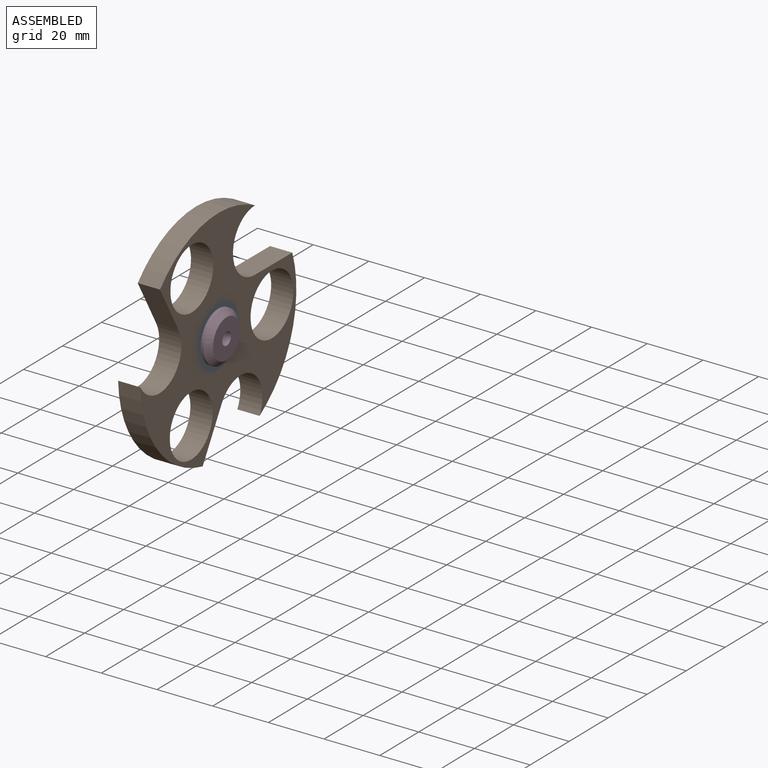
[diagram: assembled view]
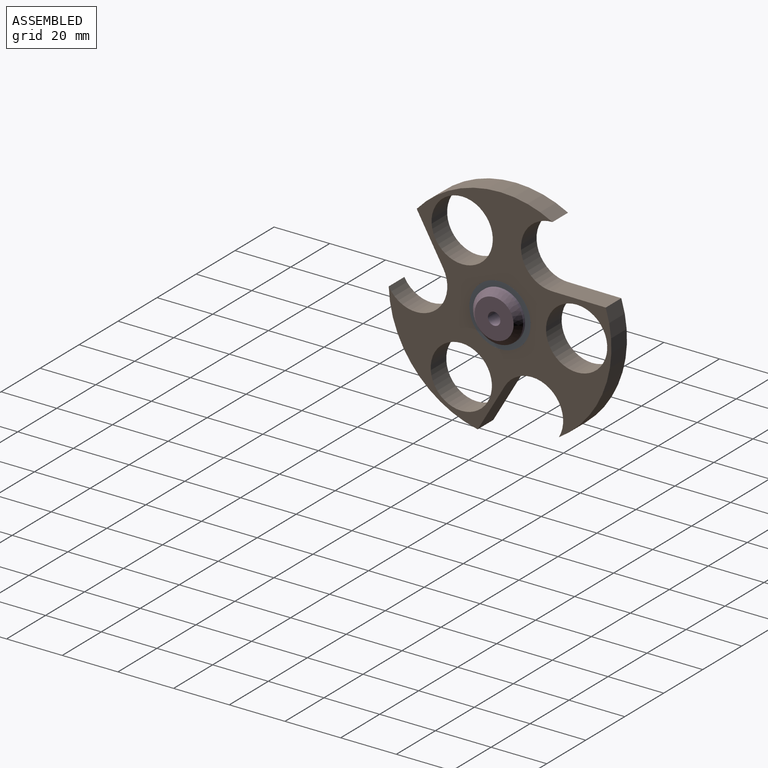
[diagram: assembled view, second angle]
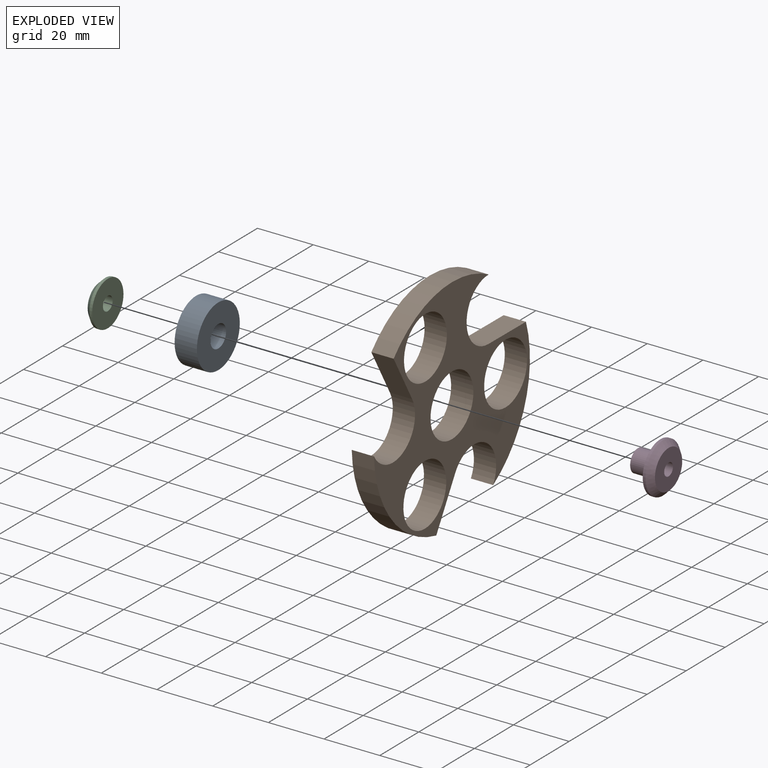
[diagram: exploded view]
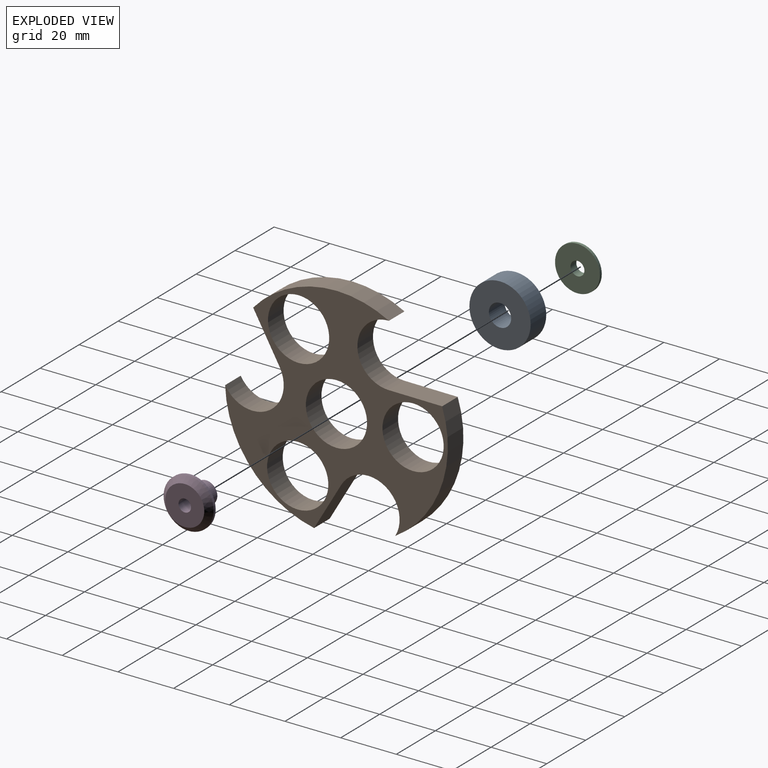
[diagram: exploded view, second angle]
ASSEMBLY  parts=4 mates=3
PART A: 4 faces, bbox 22x22x8 mm
  f0: cylinder r=4mm len=8mm, axis (0,0,-1), area 201.1mm2, adj f2,f3
  f1: cylinder r=11mm len=22mm, axis (0,0,-1), area 552.9mm2, adj f2,f3
  f2: plane 22x22mm, normal (0,0,1), area 329.9mm2, adj f0,f1
  f3: plane 22x22mm, normal (0,0,-1), area 329.9mm2, adj f0,f1
PART B: 15 faces, bbox 79.2x80x8 mm
  f0: plane 16.68x9.63mm, normal (-0.5,0.87,0), area 154.1mm2, adj f1,f12,f13,f14
  f1: cylinder r=40mm len=37.65mm, axis (0,0,-1), area 427.4mm2, adj f0,f2,f13,f14
  f2: cylinder r=11.26mm len=21.01mm, axis (0,0,-1), area 283mm2, adj f1,f3,f13,f14
  f3: plane 16.68x9.63mm, normal (-0.5,-0.87,0), area 154.1mm2, adj f2,f4,f13,f14
  f4: cylinder r=40mm len=48.71mm, axis (0,0,-1), area 427.4mm2, adj f3,f5,f13,f14
  f5: cylinder r=11.26mm len=22.52mm, axis (0,0,-1), area 283mm2, adj f4,f6,f13,f14
  f6: plane 19.26x8mm, normal (1,0,0), area 154.1mm2, adj f5,f7,f13,f14
  f7: cylinder r=40mm len=46.71mm, axis (0,0,-1), area 427.4mm2, adj f6,f12,f13,f14
  f8: cylinder r=11mm len=22mm, axis (0,0,-1), area 552.9mm2, adj f13,f14
  f9: cylinder r=11mm len=22mm, axis (0,0,-1), area 552.9mm2, adj f13,f14
  f10: cylinder r=11mm len=22mm, axis (0,0,-1), area 552.9mm2, adj f13,f14
  f11: cylinder r=11mm len=22mm, axis (0,0,-1), area 552.9mm2, adj f13,f14
  f12: cylinder r=11.26mm len=21.01mm, axis (0,0,-1), area 283mm2, adj f0,f7,f13,f14
  f13: plane 79.97x79.24mm, normal (0,0,1), area 2088.3mm2, adj f0,f1,f2,f3,f4,f5,f6,f7
  f14: plane 79.97x79.24mm, normal (0,0,-1), area 2088.3mm2, adj f0,f1,f2,f3,f4,f5,f6,f7
PART C: 5 faces, bbox 16.1x16.1x3 mm
  f0: cylinder r=8.04mm len=16.09mm, axis (0,0,1), area 50.5mm2, adj f3,f4
  f1: cylinder r=2.5mm len=5mm, axis (0,0,1), area 47.1mm2, adj f2,f3
  f2: plane 12.09x12.09mm, normal (0,0,-1), area 95.1mm2, adj f1,f4
  f3: plane 16.09x16.09mm, normal (0,0,1), area 183.6mm2, adj f0,f1
  f4: cone r=6.04mm half-angle=45deg, axis (0,0,1), area 125.2mm2, adj f0,f2
PART D: 7 faces, bbox 18x18x11 mm
  f0: cylinder r=9mm len=18mm, axis (0,0,-1), area 56.5mm2, adj f3,f6
  f1: cylinder r=2.25mm len=11mm, axis (0,0,-1), area 155.5mm2, adj f2,f4
  f2: plane 14x14mm, normal (0,0,1), area 138mm2, adj f1,f6
  f3: plane 18x18mm, normal (0,0,-1), area 204.2mm2, adj f0,f5
  f4: plane 8x8mm, normal (0,0,-1), area 34.4mm2, adj f1,f5
  f5: cylinder r=4mm len=8mm, axis (0,0,1), area 201.1mm2, adj f3,f4
  f6: cone r=7mm half-angle=45deg, axis (0,0,-1), area 142.2mm2, adj f0,f2
PLACE A rot(axis=(0,-1,0),90deg) t=(4,-10.37,16.71)mm
PLACE B rot(axis=(-0.66,-0.38,0.66),138.8deg) t=(4,19.66,0.5)mm
PLACE C rot(axis=(-0.58,0.58,-0.58),120deg) t=(-4,-16.71,10.37)mm
PLACE D rot(axis=(0,1,0),90deg) t=(-4,-10.37,-16.71)mm
MATE fastened D.f0 <-> A.f0  axis (-1,0,0) through (-4,0,0)mm
MATE revolute B.f1 <-> A.f0  axis (-1,0,0) through (-4,0,0)mm
MATE fastened C.f0 <-> D.f0  axis (1,0,0) through (-4,0,0)mm
